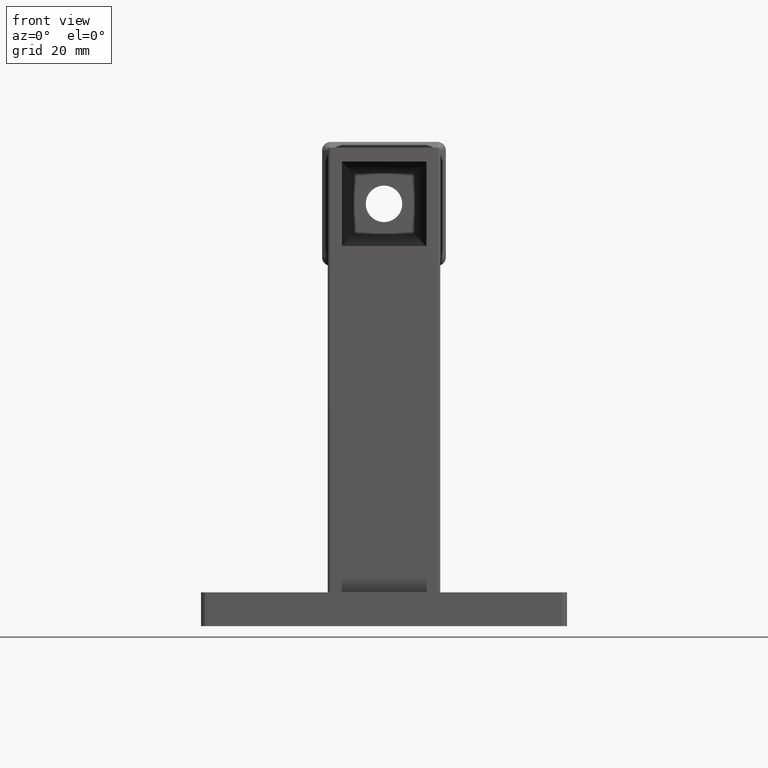
[diagram: clean part render]
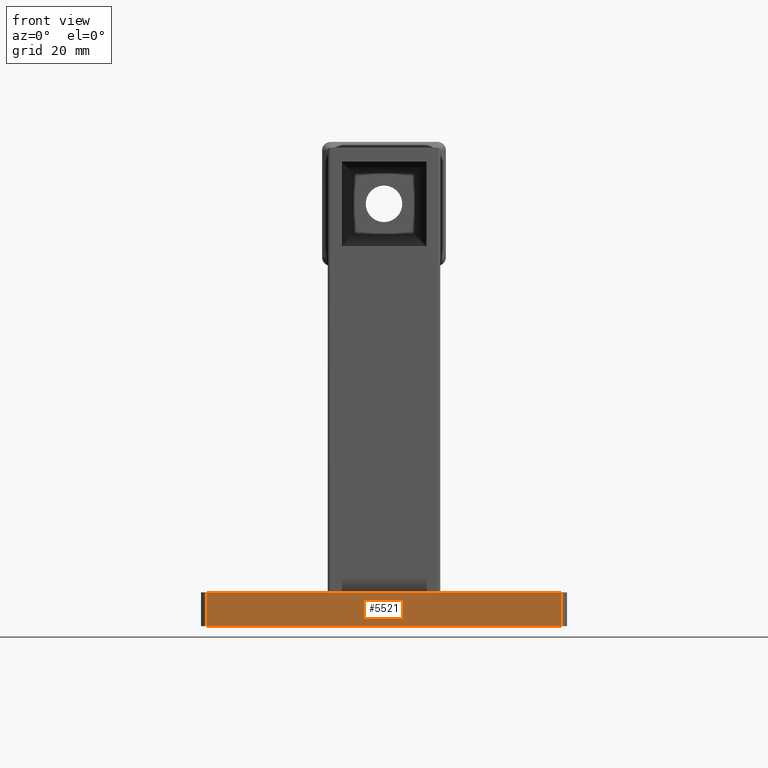
[diagram: same view with one face highlighted and labeled with its STEP entity id]
A machine part, front view. The second image highlights one B-rep face of the part: STEP entity #5521.
In plain terms, the highlighted planar face has unit normal (0, 1, 0).
Its self-contained STEP definition (entity closure, byte-faithful):
#195 = VERTEX_POINT ( 'NONE', #1472 ) ;
#1117 = VERTEX_POINT ( 'NONE', #4969 ) ;
#1303 = DIRECTION ( 'NONE',  ( 0.000000000000000000, 0.000000000000000000, -1.000000000000000000 ) ) ;
#1472 = CARTESIAN_POINT ( 'NONE',  ( 31.50000000000000000, -17.50000000000000355, 0.000000000000000000 ) ) ;
#1988 = PLANE ( 'NONE',  #2526 ) ;
#2147 = VECTOR ( 'NONE', #6921, 1000.000000000000000 ) ;
#2210 = ORIENTED_EDGE ( 'NONE', *, *, #2777, .T. ) ;
#2526 = AXIS2_PLACEMENT_3D ( 'NONE', #3039, #10340, #6192 ) ;
#2679 = VECTOR ( 'NONE', #1303, 1000.000000000000000 ) ;
#2777 = EDGE_CURVE ( 'NONE', #5263, #1117, #9505, .T. ) ;
#3039 = CARTESIAN_POINT ( 'NONE',  ( -32.50000000000000000, -17.50000000000000355, 6.000000000000000000 ) ) ;
#3159 = VECTOR ( 'NONE', #9015, 1000.000000000000000 ) ;
#3863 = CARTESIAN_POINT ( 'NONE',  ( 31.50000000000000000, -17.50000000000000355, 6.000000000000000000 ) ) ;
#4082 = EDGE_CURVE ( 'NONE', #195, #9468, #11778, .T. ) ;
#4969 = CARTESIAN_POINT ( 'NONE',  ( -31.50000000000000000, -17.50000000000000355, 0.000000000000000000 ) ) ;
#5263 = VERTEX_POINT ( 'NONE', #10557 ) ;
#5264 = VECTOR ( 'NONE', #12372, 1000.000000000000000 ) ;
#5521 = ADVANCED_FACE ( 'NONE', ( #6446 ), #1988, .F. ) ;
#6192 = DIRECTION ( 'NONE',  ( 0.000000000000000000, -0.000000000000000000, 1.000000000000000000 ) ) ;
#6446 = FACE_OUTER_BOUND ( 'NONE', #6798, .T. ) ;
#6798 = EDGE_LOOP ( 'NONE', ( #10722, #10986, #8842, #2210 ) ) ;
#6827 = CARTESIAN_POINT ( 'NONE',  ( -32.50000000000000000, -17.50000000000000355, 6.000000000000000000 ) ) ;
#6921 = DIRECTION ( 'NONE',  ( 1.000000000000000000, 0.000000000000000000, 0.000000000000000000 ) ) ;
#8125 = LINE ( 'NONE', #6827, #2147 ) ;
#8380 = CARTESIAN_POINT ( 'NONE',  ( -31.50000000000000000, -17.50000000000000355, 0.000000000000000000 ) ) ;
#8842 = ORIENTED_EDGE ( 'NONE', *, *, #12852, .F. ) ;
#9015 = DIRECTION ( 'NONE',  ( -0.000000000000000000, -0.000000000000000000, 1.000000000000000000 ) ) ;
#9160 = CARTESIAN_POINT ( 'NONE',  ( -32.50000000000000000, -17.50000000000000355, 0.000000000000000000 ) ) ;
#9468 = VERTEX_POINT ( 'NONE', #12233 ) ;
#9505 = LINE ( 'NONE', #8380, #2679 ) ;
#10290 = LINE ( 'NONE', #9160, #5264 ) ;
#10340 = DIRECTION ( 'NONE',  ( 0.000000000000000000, 1.000000000000000000, 0.000000000000000000 ) ) ;
#10351 = EDGE_CURVE ( 'NONE', #1117, #195, #10290, .T. ) ;
#10557 = CARTESIAN_POINT ( 'NONE',  ( -31.50000000000000000, -17.50000000000000355, 6.000000000000000000 ) ) ;
#10722 = ORIENTED_EDGE ( 'NONE', *, *, #10351, .T. ) ;
#10986 = ORIENTED_EDGE ( 'NONE', *, *, #4082, .T. ) ;
#11778 = LINE ( 'NONE', #3863, #3159 ) ;
#12233 = CARTESIAN_POINT ( 'NONE',  ( 31.50000000000000000, -17.50000000000000355, 6.000000000000000000 ) ) ;
#12372 = DIRECTION ( 'NONE',  ( 1.000000000000000000, 0.000000000000000000, 0.000000000000000000 ) ) ;
#12852 = EDGE_CURVE ( 'NONE', #5263, #9468, #8125, .T. ) ;